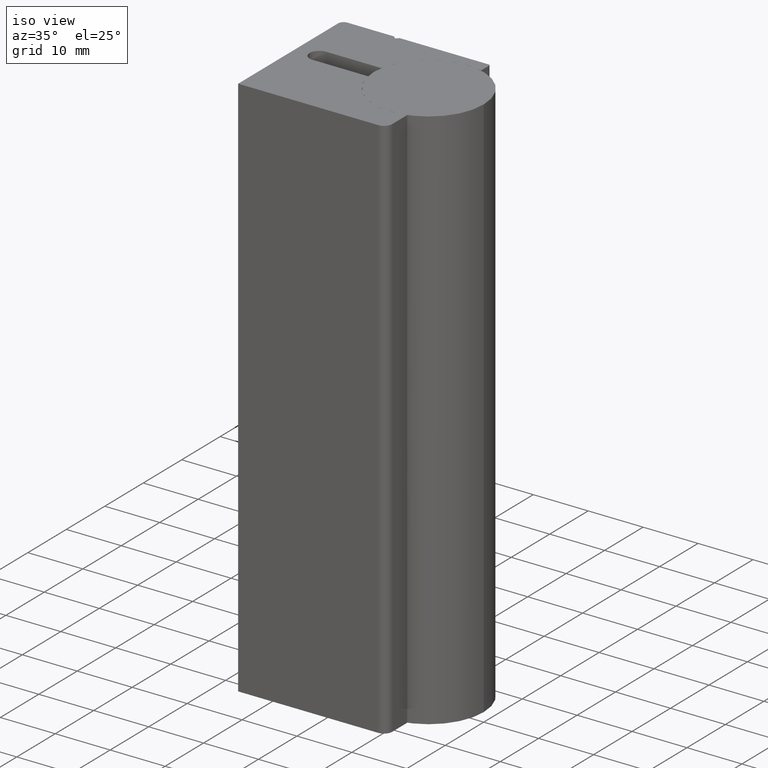
[diagram: clean part render]
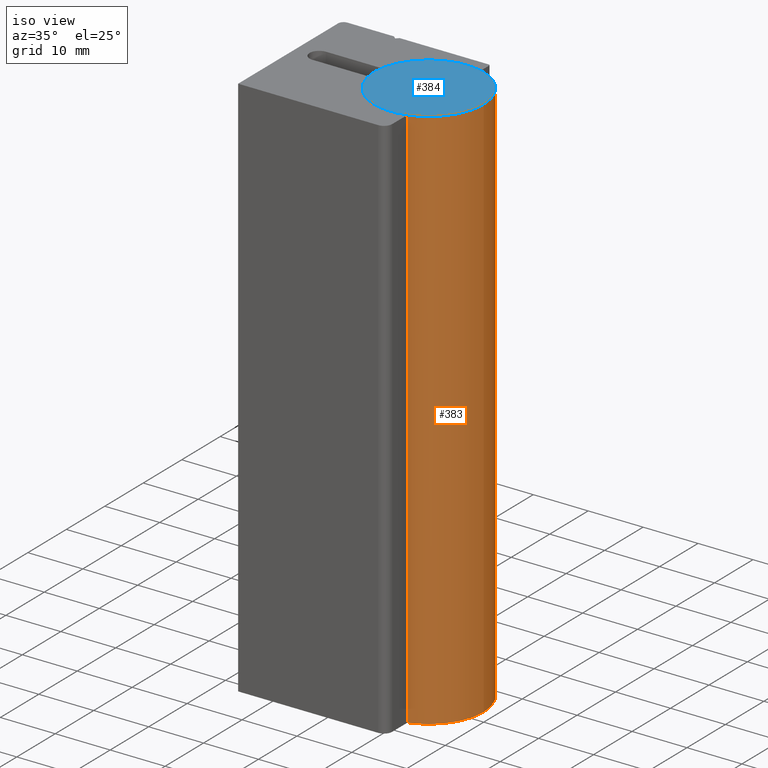
[diagram: same view with the hole feature highlighted: cylindrical wall and planar end face, labeled with their STEP entity ids]
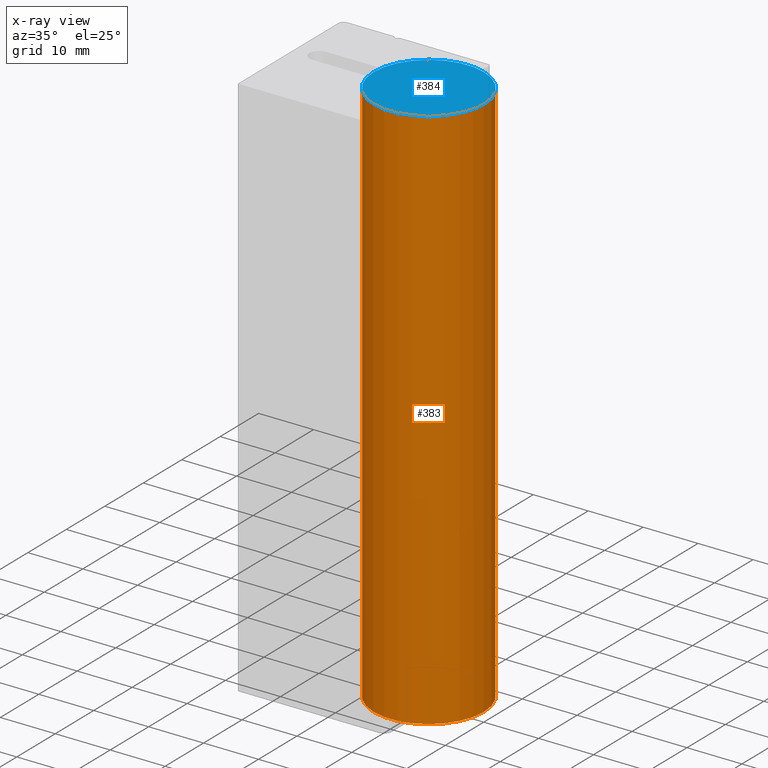
[diagram: x-ray of the same camera — body ghosted, the hole faces saturated]
A machine part, iso view. The highlighted faces form one hole feature of diameter 20 mm: the cylindrical wall (entity #383, orange) and its adjacent planar end face (entity #384, blue) — they share a circular edge in the B-rep.
The next image is the same camera in x-ray (body ghosted, the hole faces saturated) — the bore reads through the body.
Wall:
#39=CIRCLE('',#484,10.);
#40=CIRCLE('',#485,10.);
#47=CYLINDRICAL_SURFACE('',#483,10.);
#66=FACE_OUTER_BOUND('',#87,.T.);
#87=EDGE_LOOP('',(#345,#346,#347,#348));
#126=LINE('',#712,#163);
#163=VECTOR('',#596,10.);
#196=VERTEX_POINT('',#709);
#197=VERTEX_POINT('',#711);
#246=EDGE_CURVE('',#196,#196,#39,.T.);
#247=EDGE_CURVE('',#196,#197,#126,.T.);
#248=EDGE_CURVE('',#197,#197,#40,.T.);
#345=ORIENTED_EDGE('',*,*,#246,.F.);
#346=ORIENTED_EDGE('',*,*,#247,.T.);
#347=ORIENTED_EDGE('',*,*,#248,.F.);
#348=ORIENTED_EDGE('',*,*,#247,.F.);
#383=ADVANCED_FACE('',(#66),#47,.T.);
#483=AXIS2_PLACEMENT_3D('',#708,#592,#593);
#484=AXIS2_PLACEMENT_3D('',#710,#594,#595);
#485=AXIS2_PLACEMENT_3D('',#713,#597,#598);
#592=DIRECTION('center_axis',(0.,0.,1.));
#593=DIRECTION('ref_axis',(-1.,0.,0.));
#594=DIRECTION('center_axis',(0.,0.,1.));
#595=DIRECTION('ref_axis',(-1.,0.,0.));
#596=DIRECTION('',(0.,0.,-1.));
#597=DIRECTION('center_axis',(0.,0.,-1.));
#598=DIRECTION('ref_axis',(-1.,0.,0.));
#708=CARTESIAN_POINT('Origin',(0.,0.,0.));
#709=CARTESIAN_POINT('',(10.,1.22464679914735E-15,100.));
#710=CARTESIAN_POINT('Origin',(0.,0.,100.));
#711=CARTESIAN_POINT('',(10.,1.22464679914735E-15,0.));
#712=CARTESIAN_POINT('',(10.,1.22464679914735E-15,0.));
#713=CARTESIAN_POINT('Origin',(0.,0.,0.));
End face:
#39=CIRCLE('',#484,10.);
#67=FACE_OUTER_BOUND('',#88,.T.);
#88=EDGE_LOOP('',(#349));
#196=VERTEX_POINT('',#709);
#246=EDGE_CURVE('',#196,#196,#39,.T.);
#349=ORIENTED_EDGE('',*,*,#246,.T.);
#363=PLANE('',#486);
#384=ADVANCED_FACE('',(#67),#363,.T.);
#484=AXIS2_PLACEMENT_3D('',#710,#594,#595);
#486=AXIS2_PLACEMENT_3D('',#714,#599,#600);
#594=DIRECTION('center_axis',(0.,0.,1.));
#595=DIRECTION('ref_axis',(-1.,0.,0.));
#599=DIRECTION('center_axis',(0.,0.,1.));
#600=DIRECTION('ref_axis',(1.,0.,0.));
#709=CARTESIAN_POINT('',(10.,1.22464679914735E-15,100.));
#710=CARTESIAN_POINT('Origin',(0.,0.,100.));
#714=CARTESIAN_POINT('Origin',(-4.72128241470665E-16,0.,100.));